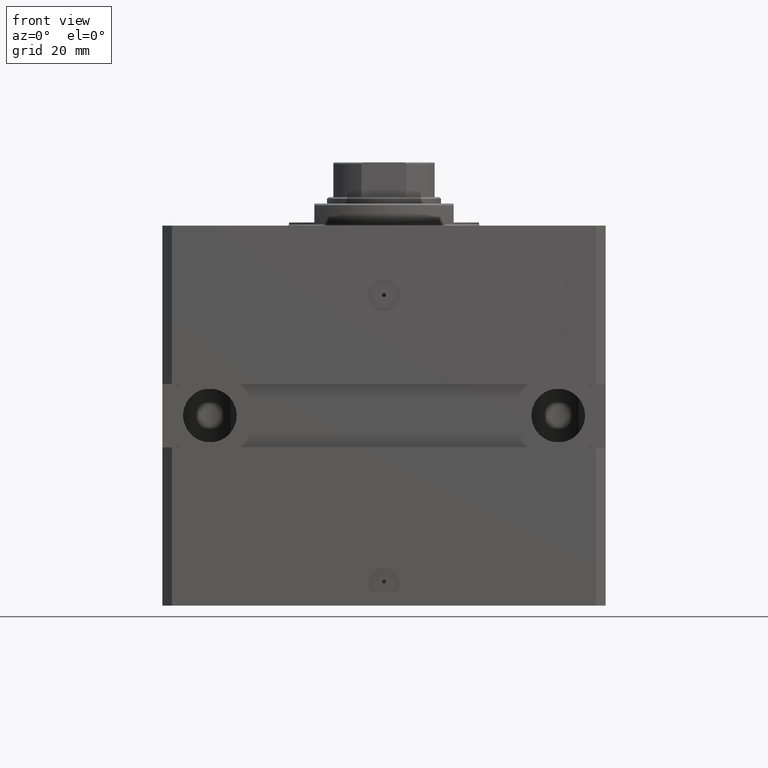
[diagram: clean part render]
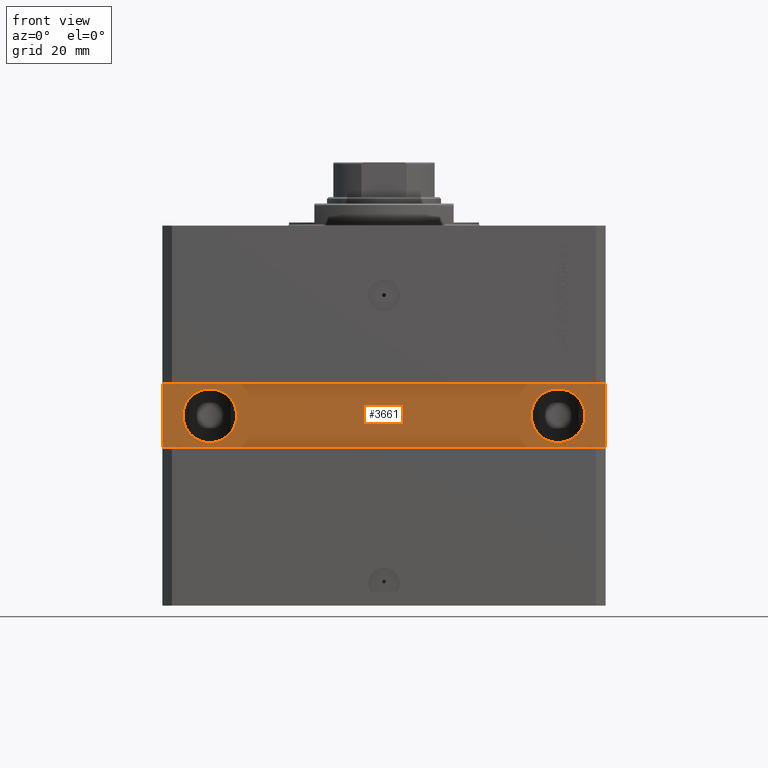
[diagram: same view with one face highlighted and labeled with its STEP entity id]
A machine part, front view. The second image highlights one B-rep face of the part: STEP entity #3661.
In plain terms, the highlighted planar face has unit normal (0, -1, 0).
Its self-contained STEP definition (entity closure, byte-faithful):
#572 = VERTEX_POINT ( 'NONE', #27012 ) ;
#2347 = DIRECTION ( 'NONE',  ( 1.000000000000000000, 0.000000000000000000, 0.000000000000000000 ) ) ;
#2582 = DIRECTION ( 'NONE',  ( 1.000000000000000000, 0.000000000000000000, 0.000000000000000000 ) ) ;
#2779 = DIRECTION ( 'NONE',  ( 1.259997159735995847E-16, -1.000000000000000000, 2.465190328815661345E-32 ) ) ;
#3661 = ADVANCED_FACE ( 'NONE', ( #6164, #17173, #32411 ), #13415, .T. ) ;
#3781 = CIRCLE ( 'NONE', #31721, 8.499999999999987566 ) ;
#4445 = CARTESIAN_POINT ( 'NONE',  ( 63.50000000000000000, -49.99999999999997868, -60.00000000000000000 ) ) ;
#5533 = EDGE_CURVE ( 'NONE', #25720, #572, #14587, .T. ) ;
#5845 = CARTESIAN_POINT ( 'NONE',  ( -54.99999999999998579, -49.99999999999999289, -60.00000000000001421 ) ) ;
#5983 = CARTESIAN_POINT ( 'NONE',  ( -70.00000000000001421, -49.99999999999999289, -50.00000000000000000 ) ) ;
#6164 = FACE_BOUND ( 'NONE', #27669, .T. ) ;
#7297 = DIRECTION ( 'NONE',  ( 1.101411730780568590E-16, -1.000000000000000000, 0.000000000000000000 ) ) ;
#7364 = VECTOR ( 'NONE', #22450, 1000.000000000000000 ) ;
#7930 = CARTESIAN_POINT ( 'NONE',  ( -70.00000000000001421, -49.99999999999999289, -50.00000000000000000 ) ) ;
#8070 = CARTESIAN_POINT ( 'NONE',  ( -46.49999999999998579, -49.99999999999999289, -60.00000000000001421 ) ) ;
#8961 = ORIENTED_EDGE ( 'NONE', *, *, #43509, .F. ) ;
#9118 = CARTESIAN_POINT ( 'NONE',  ( 70.00000000000001421, -49.99999999999997868, -49.99999999999996447 ) ) ;
#10782 = CARTESIAN_POINT ( 'NONE',  ( -54.99999999999998579, -49.99999999999999289, -60.00000000000001421 ) ) ;
#12177 = CARTESIAN_POINT ( 'NONE',  ( 70.00000000000001421, -49.99999999999997868, -70.00000000000000000 ) ) ;
#12232 = AXIS2_PLACEMENT_3D ( 'NONE', #40722, #2779, #24776 ) ;
#13415 = PLANE ( 'NONE',  #23314 ) ;
#13586 = AXIS2_PLACEMENT_3D ( 'NONE', #5845, #40054, #2582 ) ;
#14298 = CIRCLE ( 'NONE', #45383, 8.500000000000000000 ) ;
#14358 = DIRECTION ( 'NONE',  ( 0.000000000000000000, 0.000000000000000000, -1.000000000000000000 ) ) ;
#14587 = CIRCLE ( 'NONE', #12232, 8.499999999999987566 ) ;
#16393 = VECTOR ( 'NONE', #39882, 1000.000000000000000 ) ;
#17173 = FACE_BOUND ( 'NONE', #23557, .T. ) ;
#17952 = EDGE_CURVE ( 'NONE', #572, #25720, #3781, .T. ) ;
#18071 = CARTESIAN_POINT ( 'NONE',  ( 55.00000000000001421, -49.99999999999997868, -60.00000000000000000 ) ) ;
#18651 = CARTESIAN_POINT ( 'NONE',  ( -70.00000000000001421, -49.99999999999999289, -70.00000000000000000 ) ) ;
#18814 = VERTEX_POINT ( 'NONE', #18651 ) ;
#19133 = VECTOR ( 'NONE', #14358, 1000.000000000000000 ) ;
#20178 = ORIENTED_EDGE ( 'NONE', *, *, #17952, .F. ) ;
#21059 = CARTESIAN_POINT ( 'NONE',  ( -70.00000000000001421, -49.99999999999999289, -70.00000000000000000 ) ) ;
#22450 = DIRECTION ( 'NONE',  ( 1.000000000000000000, 9.912705577010323084E-17, 0.000000000000000000 ) ) ;
#23314 = AXIS2_PLACEMENT_3D ( 'NONE', #47613, #36630, #28653 ) ;
#23557 = EDGE_LOOP ( 'NONE', ( #41905, #8961 ) ) ;
#24068 = EDGE_CURVE ( 'NONE', #31513, #29961, #42272, .T. ) ;
#24776 = DIRECTION ( 'NONE',  ( 1.000000000000000000, 0.000000000000000000, 0.000000000000000000 ) ) ;
#25720 = VERTEX_POINT ( 'NONE', #4445 ) ;
#26848 = DIRECTION ( 'NONE',  ( -1.000000000000000000, -9.912705577010323084E-17, -2.973811673103097172E-16 ) ) ;
#27012 = CARTESIAN_POINT ( 'NONE',  ( 46.50000000000002842, -49.99999999999997868, -60.00000000000000000 ) ) ;
#27669 = EDGE_LOOP ( 'NONE', ( #44917, #20178 ) ) ;
#28653 = DIRECTION ( 'NONE',  ( 1.000000000000000000, 9.912705577010323084E-17, 0.000000000000000000 ) ) ;
#29853 = CARTESIAN_POINT ( 'NONE',  ( 70.00000000000001421, -49.99999999999997868, -49.99999999999996447 ) ) ;
#29961 = VERTEX_POINT ( 'NONE', #40658 ) ;
#30794 = VERTEX_POINT ( 'NONE', #7930 ) ;
#31168 = ORIENTED_EDGE ( 'NONE', *, *, #40183, .T. ) ;
#31202 = ORIENTED_EDGE ( 'NONE', *, *, #40051, .T. ) ;
#31513 = VERTEX_POINT ( 'NONE', #8070 ) ;
#31721 = AXIS2_PLACEMENT_3D ( 'NONE', #18071, #33825, #48769 ) ;
#32221 = ORIENTED_EDGE ( 'NONE', *, *, #33039, .T. ) ;
#32411 = FACE_OUTER_BOUND ( 'NONE', #40761, .T. ) ;
#32459 = LINE ( 'NONE', #5983, #19133 ) ;
#33039 = EDGE_CURVE ( 'NONE', #18814, #43851, #45166, .T. ) ;
#33825 = DIRECTION ( 'NONE',  ( 1.259997159735995847E-16, -1.000000000000000000, 2.465190328815661345E-32 ) ) ;
#36218 = CARTESIAN_POINT ( 'NONE',  ( 70.00000000000001421, -49.99999999999997868, -70.00000000000000000 ) ) ;
#36630 = DIRECTION ( 'NONE',  ( 9.912705577010323084E-17, -1.000000000000000000, 0.000000000000000000 ) ) ;
#39882 = DIRECTION ( 'NONE',  ( 0.000000000000000000, 0.000000000000000000, 1.000000000000000000 ) ) ;
#40051 = EDGE_CURVE ( 'NONE', #43851, #43382, #46370, .T. ) ;
#40054 = DIRECTION ( 'NONE',  ( 1.101411730780568590E-16, -1.000000000000000000, 0.000000000000000000 ) ) ;
#40183 = EDGE_CURVE ( 'NONE', #43382, #30794, #42070, .T. ) ;
#40658 = CARTESIAN_POINT ( 'NONE',  ( -63.49999999999998579, -49.99999999999999289, -60.00000000000001421 ) ) ;
#40722 = CARTESIAN_POINT ( 'NONE',  ( 55.00000000000001421, -49.99999999999997868, -60.00000000000000000 ) ) ;
#40761 = EDGE_LOOP ( 'NONE', ( #32221, #31202, #31168, #45794 ) ) ;
#41905 = ORIENTED_EDGE ( 'NONE', *, *, #24068, .F. ) ;
#42070 = LINE ( 'NONE', #29853, #47477 ) ;
#42272 = CIRCLE ( 'NONE', #13586, 8.500000000000000000 ) ;
#43382 = VERTEX_POINT ( 'NONE', #9118 ) ;
#43509 = EDGE_CURVE ( 'NONE', #29961, #31513, #14298, .T. ) ;
#43851 = VERTEX_POINT ( 'NONE', #36218 ) ;
#43991 = EDGE_CURVE ( 'NONE', #30794, #18814, #32459, .T. ) ;
#44917 = ORIENTED_EDGE ( 'NONE', *, *, #5533, .F. ) ;
#45166 = LINE ( 'NONE', #21059, #7364 ) ;
#45383 = AXIS2_PLACEMENT_3D ( 'NONE', #10782, #7297, #2347 ) ;
#45794 = ORIENTED_EDGE ( 'NONE', *, *, #43991, .T. ) ;
#46370 = LINE ( 'NONE', #12177, #16393 ) ;
#47477 = VECTOR ( 'NONE', #26848, 1000.000000000000000 ) ;
#47613 = CARTESIAN_POINT ( 'NONE',  ( 4.863946211092281633E-15, -49.99999999999998579, 0.000000000000000000 ) ) ;
#48769 = DIRECTION ( 'NONE',  ( 1.000000000000000000, 0.000000000000000000, 0.000000000000000000 ) ) ;